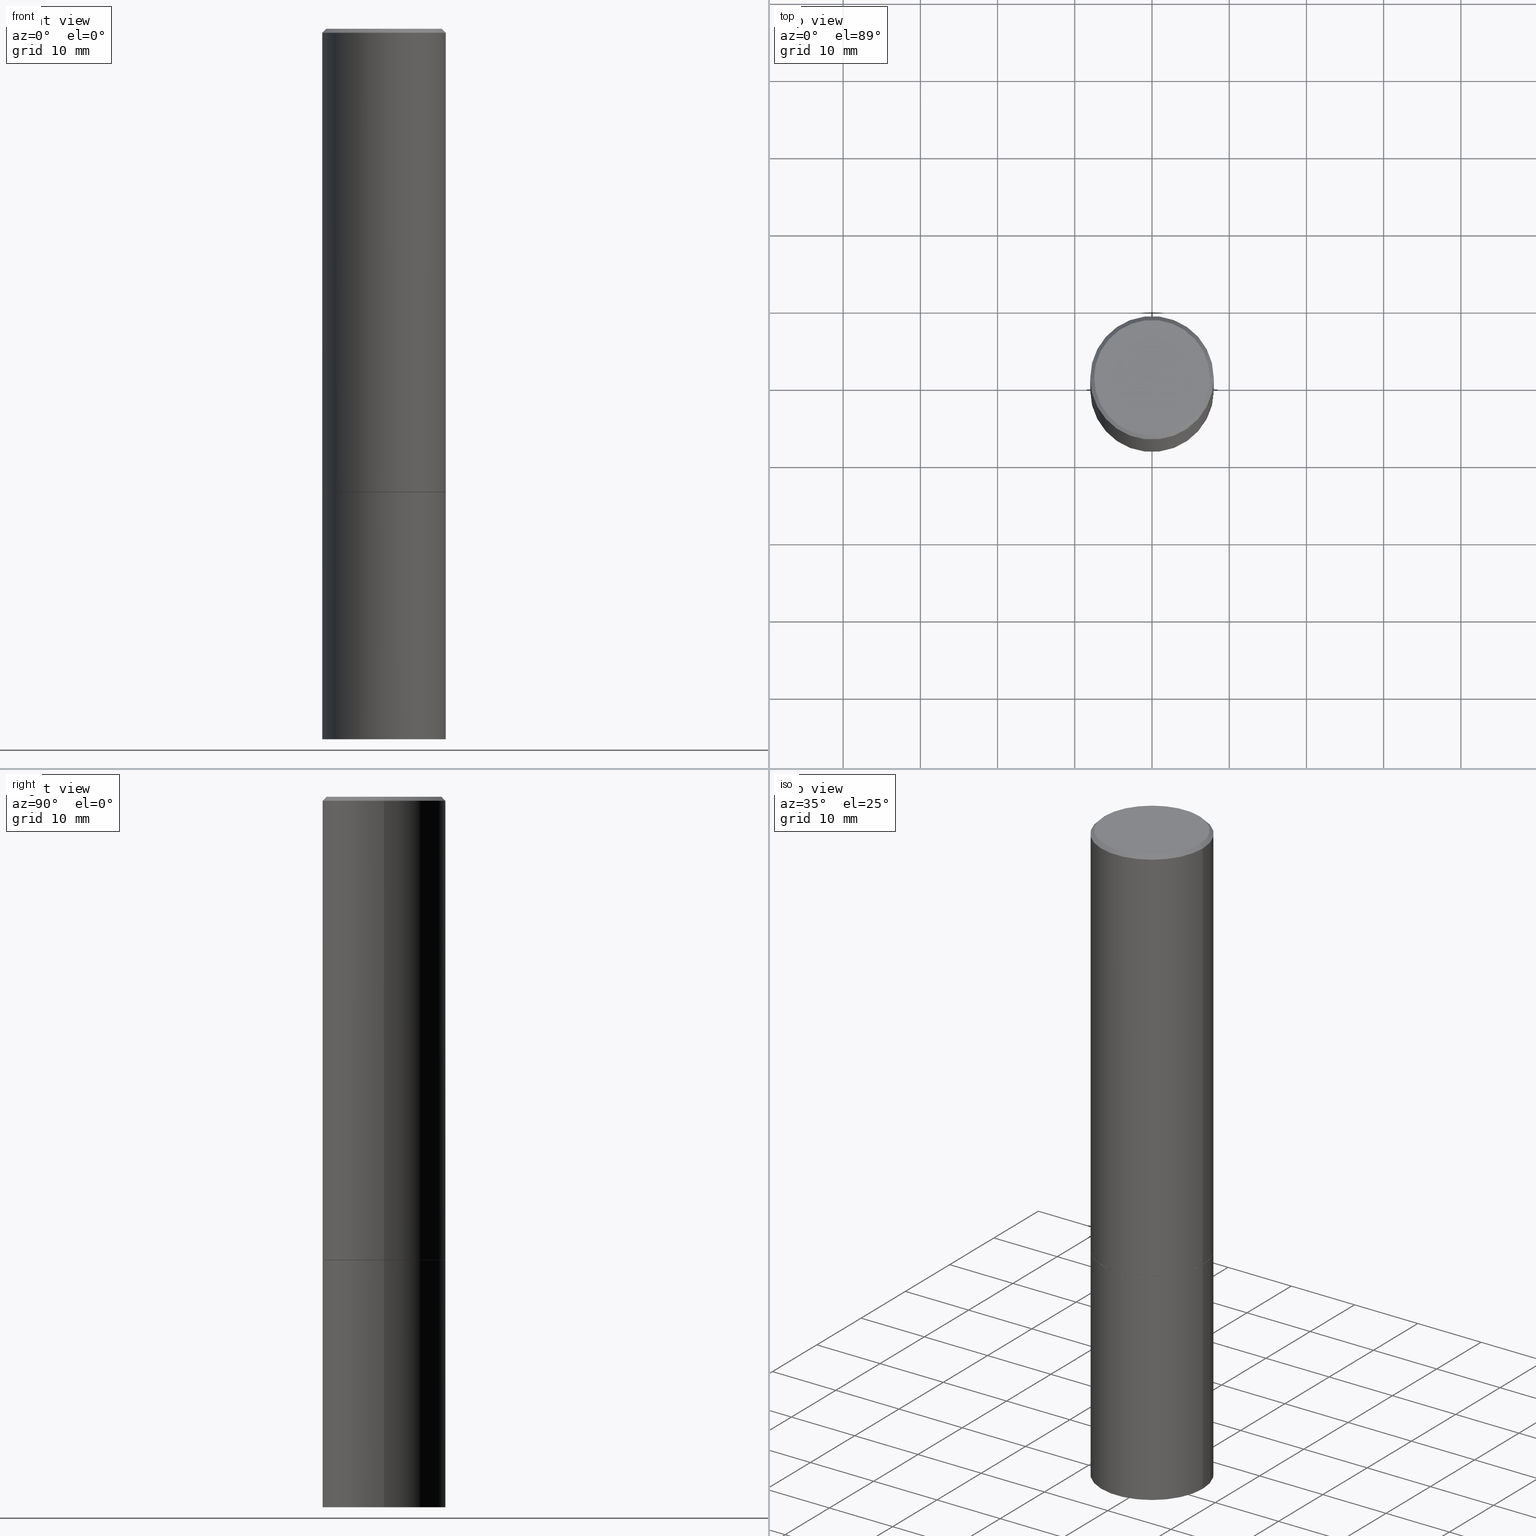
[diagram: canonical four-view strip — front | top / right | iso, engineering-drawing reading convention]
A machine part, canonical four-view strip (front | top / right | iso — engineering-drawing reading convention). The complete STEP part file that produces these views, byte-faithful:
ISO-10303-21;
HEADER;
FILE_DESCRIPTION (( 'STEP AP203' ),
    '1' );
FILE_NAME ('44711.STEP',
    '2024-02-28T07:38:25',
    ( '' ),
    ( '' ),
    'SwSTEP 2.0',
    'SolidWorks 2023',
    '' );
FILE_SCHEMA (( 'CONFIG_CONTROL_DESIGN' ));
ENDSEC;

DATA;
#1 = DIRECTION ( 'NONE',  ( -2.445468806185136597E-29, 3.491481338843145583E-15, 1.000000000000000000 ) ) ;
#2 = AXIS2_PLACEMENT_3D ( 'NONE', #160, #349, #328 ) ;
#3 = LOCAL_TIME ( 2, 38, 25.00000000000000000, #265 ) ;
#4 = EDGE_LOOP ( 'NONE', ( #127, #9, #43, #89 ) ) ;
#5 = DIRECTION ( 'NONE',  ( -2.445468806185136597E-29, 3.491481338843145583E-15, 1.000000000000000000 ) ) ;
#6 = ORIENTED_EDGE ( 'NONE', *, *, #262, .F. ) ;
#7 = ORIENTED_EDGE ( 'NONE', *, *, #363, .T. ) ;
#8 = CLOSED_SHELL ( 'NONE', ( #260, #74, #273, #165, #37, #331, #81, #286 ) ) ;
#9 = ORIENTED_EDGE ( 'NONE', *, *, #147, .T. ) ;
#10 = APPROVAL ( #135, 'UNSPECIFIED' ) ;
#11 = AXIS2_PLACEMENT_3D ( 'NONE', #119, #232, #284 ) ;
#12 = DIRECTION ( 'NONE',  ( 1.000000000000000000, -6.982962677686266711E-15, 0.000000000000000000 ) ) ;
#13 = FACE_OUTER_BOUND ( 'NONE', #58, .T. ) ;
#14 = DIRECTION ( 'NONE',  ( -2.445468806185136597E-29, 3.491481338843145583E-15, 1.000000000000000000 ) ) ;
#15 = CARTESIAN_POINT ( 'NONE',  ( 5.774240945164344150E-29, -8.244085737276433464E-15, -2.361199999999999743 ) ) ;
#16 = CC_DESIGN_PERSON_AND_ORGANIZATION_ASSIGNMENT ( #296, #142, ( #303 ) ) ;
#17 = CARTESIAN_POINT ( 'NONE',  ( 0.3149500000000000077, -2.199284095337289871E-15, 1.535751875536930130E-29 ) ) ;
#18 = PERSON_AND_ORGANIZATION ( #354, #151 ) ;
#19 = CIRCLE ( 'NONE', #346, 0.3149500000000000077 ) ;
#20 = PERSON_AND_ORGANIZATION ( #354, #151 ) ;
#21 = COORDINATED_UNIVERSAL_TIME_OFFSET ( 5, 0, .BEHIND. ) ;
#22 = MANIFOLD_SOLID_BREP ( 'Body-Move/Copy2[2]', #8 ) ;
#23 = FACE_OUTER_BOUND ( 'NONE', #53, .T. ) ;
#24 = FACE_OUTER_BOUND ( 'NONE', #93, .T. ) ;
#25 = APPROVAL_ROLE ( '' ) ;
#26 = DIRECTION ( 'NONE',  ( -2.445468806185136597E-29, 3.491481338843145583E-15, 1.000000000000000000 ) ) ;
#27 = APPROVAL_STATUS ( 'not_yet_approved' ) ;
#28 = CC_DESIGN_APPROVAL ( #129, ( #323 ) ) ;
#29 = DIRECTION ( 'NONE',  ( 1.000000000000000000, -6.982962677686265922E-15, 4.876176775795935232E-29 ) ) ;
#30 = CARTESIAN_POINT ( 'NONE',  ( 5.776686413970529753E-29, -8.247577218615278049E-15, -2.362199999999999633 ) ) ;
#31 = CARTESIAN_POINT ( 'NONE',  ( 5.776686413970529753E-29, -8.247577218615278049E-15, -2.362199999999999633 ) ) ;
#32 = DIRECTION ( 'NONE',  ( 1.000000000000000000, -6.982962677686265922E-15, 4.876176775795935793E-29 ) ) ;
#33 = EDGE_LOOP ( 'NONE', ( #94, #69, #313, #98 ) ) ;
#34 = DIRECTION ( 'NONE',  ( 2.438088387897960049E-29, -3.491481338843145188E-15, -1.000000000000000000 ) ) ;
#35 = AXIS2_PLACEMENT_3D ( 'NONE', #158, #266, #259 ) ;
#36 = LOCAL_TIME ( 2, 38, 25.00000000000000000, #355 ) ;
#37 = ADVANCED_FACE ( 'NONE', ( #13 ), #239, .T. ) ;
#38 = ORIENTED_EDGE ( 'NONE', *, *, #320, .T. ) ;
#39 = VECTOR ( 'NONE', #176, 39.37007874015748143 ) ;
#40 = CALENDAR_DATE ( 2024, 28, 2 ) ;
#41 = EDGE_CURVE ( 'NONE', #117, #287, #351, .T. ) ;
#42 =( NAMED_UNIT ( * ) SI_UNIT ( $, .STERADIAN. ) SOLID_ANGLE_UNIT ( ) );
#43 = ORIENTED_EDGE ( 'NONE', *, *, #212, .F. ) ;
#44 = DIRECTION ( 'NONE',  ( 0.7071067811865232589, -2.468850131082003836E-15, 0.7071067811865715536 ) ) ;
#45 = CC_DESIGN_APPROVAL ( #10, ( #217 ) ) ;
#46 = CYLINDRICAL_SURFACE ( 'NONE', #52, 0.3149500000000000077 ) ;
#47 = DIRECTION ( 'NONE',  ( 1.000000000000000000, -6.982962677686263555E-15, 0.000000000000000000 ) ) ;
#48 = CARTESIAN_POINT ( 'NONE',  ( 0.000000000000000000, 0.000000000000000000, 0.000000000000000000 ) ) ;
#49 = EDGE_CURVE ( 'NONE', #153, #146, #78, .T. ) ;
#50 = SECURITY_CLASSIFICATION_LEVEL ( 'unclassified' ) ;
#51 = AXIS2_PLACEMENT_3D ( 'NONE', #362, #1, #226 ) ;
#52 = AXIS2_PLACEMENT_3D ( 'NONE', #321, #14, #183 ) ;
#53 = EDGE_LOOP ( 'NONE', ( #272, #241, #124, #92 ) ) ;
#54 = PERSON_AND_ORGANIZATION ( #354, #151 ) ;
#55 = EDGE_LOOP ( 'NONE', ( #231, #340 ) ) ;
#56 = AXIS2_PLACEMENT_3D ( 'NONE', #30, #26, #199 ) ;
#57 = CARTESIAN_POINT ( 'NONE',  ( 4.890937612370288047E-31, -6.982962677686311331E-17, -0.02000000000000005940 ) ) ;
#58 = EDGE_LOOP ( 'NONE', ( #283, #201, #342, #233 ) ) ;
#59 = ADVANCED_FACE ( 'NONE', ( #164 ), #300, .F. ) ;
#60 = DIRECTION ( 'NONE',  ( -2.445468806185136597E-29, 3.491481338843145583E-15, 1.000000000000000000 ) ) ;
#61 = CARTESIAN_POINT ( 'NONE',  ( -0.3149500000000000077, 2.237854346276435590E-15, -1.549218606675782676E-29 ) ) ;
#62 = CARTESIAN_POINT ( 'NONE',  ( -0.3149499999999997302, 2.129454468560424601E-15, -0.02000000000000005940 ) ) ;
#63 = EDGE_LOOP ( 'NONE', ( #120, #7, #251, #161 ) ) ;
#64 = DIRECTION ( 'NONE',  ( -1.000000000000000000, 6.982962677686265922E-15, -4.876176775795935793E-29 ) ) ;
#65 = PRODUCT_RELATED_PRODUCT_CATEGORY ( 'detail', '', ( #204 ) ) ;
#66 = EDGE_LOOP ( 'NONE', ( #175, #304 ) ) ;
#67 = DIRECTION ( 'NONE',  ( 1.000000000000000000, -6.982962677686269077E-15, 0.000000000000000000 ) ) ;
#68 = SHAPE_DEFINITION_REPRESENTATION ( #344, #109 ) ;
#69 = ORIENTED_EDGE ( 'NONE', *, *, #41, .T. ) ;
#70 = CARTESIAN_POINT ( 'NONE',  ( 2.199284095337378223E-15, 0.3149499999999873512, -3.622000000000000774 ) ) ;
#71 = DIRECTION ( 'NONE',  ( -1.000000000000000000, 6.982962677686265922E-15, -4.876176775795935793E-29 ) ) ;
#72 = CIRCLE ( 'NONE', #250, 0.3149500000000000077 ) ;
#73 = FACE_OUTER_BOUND ( 'NONE', #63, .T. ) ;
#74 = ADVANCED_FACE ( 'NONE', ( #267 ), #249, .T. ) ;
#75 = CIRCLE ( 'NONE', #51, 0.3139500000000000068 ) ;
#76 = APPROVAL_PERSON_ORGANIZATION ( #20, #129, #85 ) ;
#77 =( CONVERSION_BASED_UNIT ( 'INCH', #236 ) LENGTH_UNIT ( ) NAMED_UNIT ( #285 ) );
#78 = LINE ( 'NONE', #187, #335 ) ;
#79 = PERSON_AND_ORGANIZATION_ROLE ( 'design_owner' ) ;
#80 = COORDINATED_UNIVERSAL_TIME_OFFSET ( 5, 0, .BEHIND. ) ;
#81 = ADVANCED_FACE ( 'NONE', ( #24 ), #223, .F. ) ;
#82 = AXIS2_PLACEMENT_3D ( 'NONE', #193, #111, #67 ) ;
#83 = AXIS2_PLACEMENT_3D ( 'NONE', #130, #348, #101 ) ;
#84 = DATE_AND_TIME ( #330, #36 ) ;
#85 = APPROVAL_ROLE ( '' ) ;
#86 = DIRECTION ( 'NONE',  ( 1.000000000000000000, -6.982962677686267499E-15, 4.876053491004739391E-29 ) ) ;
#87 = CC_DESIGN_DATE_AND_TIME_ASSIGNMENT ( #88, #110, ( #217 ) ) ;
#88 = DATE_AND_TIME ( #268, #105 ) ;
#89 = ORIENTED_EDGE ( 'NONE', *, *, #214, .F. ) ;
#90 = DIRECTION ( 'NONE',  ( -2.445468806185136597E-29, 3.491481338843145583E-15, 1.000000000000000000 ) ) ;
#91 = DIRECTION ( 'NONE',  ( -1.000000000000000000, 6.982962677686266711E-15, 0.000000000000000000 ) ) ;
#92 = ORIENTED_EDGE ( 'NONE', *, *, #172, .F. ) ;
#93 = EDGE_LOOP ( 'NONE', ( #213, #310 ) ) ;
#94 = ORIENTED_EDGE ( 'NONE', *, *, #138, .T. ) ;
#95 = APPROVAL_PERSON_ORGANIZATION ( #197, #194, #25 ) ;
#96 = ORIENTED_EDGE ( 'NONE', *, *, #295, .T. ) ;
#97 = PLANE ( 'NONE',  #318 ) ;
#98 = ORIENTED_EDGE ( 'NONE', *, *, #332, .F. ) ;
#99 = CIRCLE ( 'NONE', #56, 0.3139500000000000068 ) ;
#100 = FACE_OUTER_BOUND ( 'NONE', #179, .T. ) ;
#101 = DIRECTION ( 'NONE',  ( 1.000000000000000000, 0.000000000000000000, 0.000000000000000000 ) ) ;
#102 = MECHANICAL_CONTEXT ( 'NONE', #139, 'mechanical' ) ;
#103 = CARTESIAN_POINT ( 'NONE',  ( -0.3139500000000000068, -6.016828299696443861E-15, -2.362199999999999633 ) ) ;
#104 = AXIS2_PLACEMENT_3D ( 'NONE', #269, #5, #29 ) ;
#105 = LOCAL_TIME ( 2, 38, 25.00000000000000000, #80 ) ;
#106 = EDGE_CURVE ( 'NONE', #171, #153, #185, .T. ) ;
#107 = FACE_OUTER_BOUND ( 'NONE', #33, .T. ) ;
#108 = DIRECTION ( 'NONE',  ( -2.445468806185136597E-29, 3.491481338843145583E-15, 1.000000000000000000 ) ) ;
#109 = ADVANCED_BREP_SHAPE_REPRESENTATION ( '44711', ( #154, #22, #83 ), #297 ) ;
#110 = DATE_TIME_ROLE ( 'creation_date' ) ;
#111 = DIRECTION ( 'NONE',  ( -2.445468806185136597E-29, 3.491481338843145583E-15, 1.000000000000000000 ) ) ;
#112 = ORIENTED_EDGE ( 'NONE', *, *, #278, .T. ) ;
#113 = CLOSED_SHELL ( 'NONE', ( #181, #207, #59, #336 ) ) ;
#114 = DIRECTION ( 'NONE',  ( 1.000000000000000000, -6.982962677686263555E-15, 0.000000000000000000 ) ) ;
#115 = DIRECTION ( 'NONE',  ( 2.445468806185136597E-29, -3.491481338843145583E-15, -1.000000000000000000 ) ) ;
#116 = CC_DESIGN_DATE_AND_TIME_ASSIGNMENT ( #84, #190, ( #323 ) ) ;
#117 = VERTEX_POINT ( 'NONE', #196 ) ;
#118 = DIRECTION ( 'NONE',  ( -1.000000000000000000, 6.982962677686265922E-15, -4.876176775795935793E-29 ) ) ;
#119 = CARTESIAN_POINT ( 'NONE',  ( 4.890937612370288047E-31, -6.982962677686311331E-17, -0.02000000000000005940 ) ) ;
#120 = ORIENTED_EDGE ( 'NONE', *, *, #147, .F. ) ;
#121 = AXIS2_PLACEMENT_3D ( 'NONE', #57, #60, #274 ) ;
#122 = CC_DESIGN_APPROVAL ( #194, ( #303 ) ) ;
#123 = COORDINATED_UNIVERSAL_TIME_OFFSET ( 5, 0, .BEHIND. ) ;
#124 = ORIENTED_EDGE ( 'NONE', *, *, #289, .T. ) ;
#125 = FACE_OUTER_BOUND ( 'NONE', #55, .T. ) ;
#126 = EDGE_CURVE ( 'NONE', #153, #171, #234, .T. ) ;
#127 = ORIENTED_EDGE ( 'NONE', *, *, #290, .T. ) ;
#128 =( LENGTH_UNIT ( ) NAMED_UNIT ( * ) SI_UNIT ( $, .METRE. ) );
#129 = APPROVAL ( #27, 'UNSPECIFIED' ) ;
#130 = CARTESIAN_POINT ( 'NONE',  ( 0.000000000000000000, 0.000000000000000000, 0.000000000000000000 ) ) ;
#131 = CARTESIAN_POINT ( 'NONE',  ( 0.3139500000000000068, -1.043987835127488191E-14, -2.362199999999999633 ) ) ;
#132 = EDGE_CURVE ( 'NONE', #306, #247, #205, .T. ) ;
#133 = DIRECTION ( 'NONE',  ( -2.445468806185136877E-29, 3.491481338843145188E-15, 1.000000000000000000 ) ) ;
#134 = AXIS2_PLACEMENT_3D ( 'NONE', #195, #224, #137 ) ;
#135 = APPROVAL_STATUS ( 'not_yet_approved' ) ;
#136 = PERSON_AND_ORGANIZATION ( #354, #151 ) ;
#137 = DIRECTION ( 'NONE',  ( -1.000000000000000000, 6.982962677686266711E-15, 0.000000000000000000 ) ) ;
#138 = EDGE_CURVE ( 'NONE', #219, #117, #75, .T. ) ;
#139 = APPLICATION_CONTEXT ( 'configuration controlled 3d designs of mechanical parts and assemblies' ) ;
#140 = PERSON_AND_ORGANIZATION_ROLE ( 'design_supplier' ) ;
#141 = DIRECTION ( 'NONE',  ( -2.445468806185136597E-29, 3.491481338843145583E-15, 1.000000000000000000 ) ) ;
#142 = PERSON_AND_ORGANIZATION_ROLE ( 'creator' ) ;
#143 = EDGE_CURVE ( 'NONE', #210, #287, #72, .T. ) ;
#144 = CC_DESIGN_SECURITY_CLASSIFICATION ( #323, ( #303 ) ) ;
#145 = CARTESIAN_POINT ( 'NONE',  ( -2.087702828670439639E-46, 2.980686340760894400E-32, 8.537024980200822558E-18 ) ) ;
#146 = VERTEX_POINT ( 'NONE', #200 ) ;
#147 = EDGE_CURVE ( 'NONE', #167, #306, #305, .T. ) ;
#148 = CC_DESIGN_PERSON_AND_ORGANIZATION_ASSIGNMENT ( #326, #79, ( #204 ) ) ;
#149 = ORIENTED_EDGE ( 'NONE', *, *, #143, .T. ) ;
#150 = AXIS2_PLACEMENT_3D ( 'NONE', #15, #353, #47 ) ;
#151 = ORGANIZATION ( 'UNSPECIFIED', 'UNSPECIFIED', '' ) ;
#152 = APPROVAL_DATE_TIME ( #209, #129 ) ;
#153 = VERTEX_POINT ( 'NONE', #252 ) ;
#154 = MANIFOLD_SOLID_BREP ( 'Body-Move/Copy2[1]', #113 ) ;
#155 = DIRECTION ( 'NONE',  ( 1.000000000000000000, -6.982962677686263555E-15, 0.000000000000000000 ) ) ;
#156 = CARTESIAN_POINT ( 'NONE',  ( -0.3149499999999997302, 2.129454468560424601E-15, -0.02000000000000005940 ) ) ;
#157 = AXIS2_PLACEMENT_3D ( 'NONE', #339, #115, #91 ) ;
#158 = CARTESIAN_POINT ( 'NONE',  ( 5.776686413970529753E-29, -8.247577218615278049E-15, -2.362199999999999633 ) ) ;
#159 = DIRECTION ( 'NONE',  ( 1.000000000000000000, -6.982962677686265922E-15, 4.876176775795935232E-29 ) ) ;
#160 = CARTESIAN_POINT ( 'NONE',  ( 8.857488016002564476E-29, -1.264614540928987199E-14, -3.621999999999999886 ) ) ;
#161 = ORIENTED_EDGE ( 'NONE', *, *, #132, .F. ) ;
#162 = APPROVAL_ROLE ( '' ) ;
#163 = DATE_AND_TIME ( #298, #3 ) ;
#164 = FACE_OUTER_BOUND ( 'NONE', #333, .T. ) ;
#165 = ADVANCED_FACE ( 'NONE', ( #100 ), #281, .T. ) ;
#166 = CARTESIAN_POINT ( 'NONE',  ( 2.199284095337347063E-15, 0.3149499999999917366, -2.362200000000000966 ) ) ;
#167 = VERTEX_POINT ( 'NONE', #244 ) ;
#168 = CIRCLE ( 'NONE', #11, 0.3149499999999997302 ) ;
#169 = CARTESIAN_POINT ( 'NONE',  ( -0.2949499999999997124, 2.094539655171993740E-15, 8.537024980186296424E-18 ) ) ;
#170 = APPROVAL_STATUS ( 'not_yet_approved' ) ;
#171 = VERTEX_POINT ( 'NONE', #169 ) ;
#172 = EDGE_CURVE ( 'NONE', #171, #208, #364, .T. ) ;
#173 = DIRECTION ( 'NONE',  ( 1.000000000000000000, -6.982962677686267499E-15, 4.876053491004739391E-29 ) ) ;
#174 = CYLINDRICAL_SURFACE ( 'NONE', #291, 0.3149500000000000077 ) ;
#175 = ORIENTED_EDGE ( 'NONE', *, *, #290, .F. ) ;
#176 = DIRECTION ( 'NONE',  ( -2.445468806185136877E-29, 3.491481338843145188E-15, 1.000000000000000000 ) ) ;
#177 = CONICAL_SURFACE ( 'NONE', #134, 0.3149499999999997302, 0.7853981633974472798 ) ;
#178 = CARTESIAN_POINT ( 'NONE',  ( -0.3149500000000000077, -1.919103335750211213E-15, -2.361199999999999743 ) ) ;
#179 = EDGE_LOOP ( 'NONE', ( #227, #258, #280, #112 ) ) ;
#180 = ORIENTED_EDGE ( 'NONE', *, *, #212, .T. ) ;
#181 = ADVANCED_FACE ( 'NONE', ( #359 ), #174, .T. ) ;
#182 = VECTOR ( 'NONE', #361, 39.37007874015748143 ) ;
#183 = DIRECTION ( 'NONE',  ( 1.000000000000000000, -6.982962677686266711E-15, 4.876176775795936353E-29 ) ) ;
#184 = CARTESIAN_POINT ( 'NONE',  ( 0.3149500000000000077, -1.044686131395256792E-14, -2.362199999999999633 ) ) ;
#185 = CIRCLE ( 'NONE', #261, 0.2949499999999997124 ) ;
#186 = DIRECTION ( 'NONE',  ( -2.445468806185136877E-29, 3.491481338843145188E-15, 1.000000000000000000 ) ) ;
#187 = CARTESIAN_POINT ( 'NONE',  ( 0.3149499999999997302, -2.230543471175005478E-15, -0.02000000000000005940 ) ) ;
#188 = CC_DESIGN_PERSON_AND_ORGANIZATION_ASSIGNMENT ( #136, #276, ( #217 ) ) ;
#189 = APPLICATION_PROTOCOL_DEFINITION ( 'international standard', 'config_control_design', 1994, #256 ) ;
#190 = DATE_TIME_ROLE ( 'classification_date' ) ;
#191 = VECTOR ( 'NONE', #44, 39.37007874015748854 ) ;
#192 = DATE_AND_TIME ( #301, #314 ) ;
#193 = CARTESIAN_POINT ( 'NONE',  ( 5.776686413970529753E-29, -8.247577218615278049E-15, -2.362199999999999633 ) ) ;
#194 = APPROVAL ( #170, 'UNSPECIFIED' ) ;
#195 = CARTESIAN_POINT ( 'NONE',  ( 4.890937612370288047E-31, -6.982962677686311331E-17, -0.02000000000000005940 ) ) ;
#196 = CARTESIAN_POINT ( 'NONE',  ( -0.3139500000000000068, -6.011529845348221459E-15, -2.362199999999999633 ) ) ;
#197 = PERSON_AND_ORGANIZATION ( #354, #151 ) ;
#198 = AXIS2_PLACEMENT_3D ( 'NONE', #166, #34, #118 ) ;
#199 = DIRECTION ( 'NONE',  ( 1.000000000000000000, -6.982962677686269077E-15, 0.000000000000000000 ) ) ;
#200 = CARTESIAN_POINT ( 'NONE',  ( 0.3149499999999997302, -2.230543471175005478E-15, -0.02000000000000005940 ) ) ;
#201 = ORIENTED_EDGE ( 'NONE', *, *, #253, .T. ) ;
#202 = DIRECTION ( 'NONE',  ( 1.000000000000000000, -6.982962677686266711E-15, 4.876176775795936353E-29 ) ) ;
#203 = ORIENTED_EDGE ( 'NONE', *, *, #132, .T. ) ;
#204 = PRODUCT ( '44711', '44711', '', ( #102 ) ) ;
#205 = CIRCLE ( 'NONE', #312, 0.3149500000000000077 ) ;
#206 = ORIENTED_EDGE ( 'NONE', *, *, #289, .F. ) ;
#207 = ADVANCED_FACE ( 'NONE', ( #309 ), #97, .T. ) ;
#208 = VERTEX_POINT ( 'NONE', #156 ) ;
#209 = DATE_AND_TIME ( #40, #282 ) ;
#210 = VERTEX_POINT ( 'NONE', #257 ) ;
#211 = DIRECTION ( 'NONE',  ( 2.438088387897960049E-29, -3.491481338843145188E-15, -1.000000000000000000 ) ) ;
#212 = EDGE_CURVE ( 'NONE', #247, #306, #19, .T. ) ;
#213 = ORIENTED_EDGE ( 'NONE', *, *, #138, .F. ) ;
#214 = EDGE_CURVE ( 'NONE', #343, #247, #263, .T. ) ;
#215 = LINE ( 'NONE', #324, #221 ) ;
#216 = CIRCLE ( 'NONE', #2, 0.3149500000000000077 ) ;
#217 = PRODUCT_DEFINITION ( 'UNKNOWN', '', #303, #365 ) ;
#218 = APPROVAL_PERSON_ORGANIZATION ( #18, #10, #162 ) ;
#219 = VERTEX_POINT ( 'NONE', #131 ) ;
#220 = DIRECTION ( 'NONE',  ( -2.445468806185136877E-29, 3.491481338843145188E-15, 1.000000000000000000 ) ) ;
#221 = VECTOR ( 'NONE', #186, 39.37007874015748143 ) ;
#222 = APPROVAL_DATE_TIME ( #192, #194 ) ;
#223 = PLANE ( 'NONE',  #243 ) ;
#224 = DIRECTION ( 'NONE',  ( 2.445468806185136597E-29, -3.491481338843145583E-15, -1.000000000000000000 ) ) ;
#225 = DIRECTION ( 'NONE',  ( -2.438088387897960049E-29, 3.491481338843145188E-15, 1.000000000000000000 ) ) ;
#226 = DIRECTION ( 'NONE',  ( 1.000000000000000000, -6.982962677686269077E-15, 0.000000000000000000 ) ) ;
#227 = ORIENTED_EDGE ( 'NONE', *, *, #49, .F. ) ;
#228 = AXIS2_PLACEMENT_3D ( 'NONE', #48, #108, #159 ) ;
#229 = LINE ( 'NONE', #356, #302 ) ;
#230 = CARTESIAN_POINT ( 'NONE',  ( 0.000000000000000000, 0.000000000000000000, 0.000000000000000000 ) ) ;
#231 = ORIENTED_EDGE ( 'NONE', *, *, #106, .T. ) ;
#232 = DIRECTION ( 'NONE',  ( -2.445468806185136597E-29, 3.491481338843145583E-15, 1.000000000000000000 ) ) ;
#233 = ORIENTED_EDGE ( 'NONE', *, *, #278, .F. ) ;
#234 = CIRCLE ( 'NONE', #240, 0.2949499999999997124 ) ;
#235 = PLANE ( 'NONE',  #322 ) ;
#236 = LENGTH_MEASURE_WITH_UNIT ( LENGTH_MEASURE( 0.02539999999999999897 ), #128 );
#237 = CONICAL_SURFACE ( 'NONE', #82, 0.3139500000000000068, 0.7853981633974141952 ) ;
#238 = APPLICATION_PROTOCOL_DEFINITION ( 'international standard', 'config_control_design', 1994, #139 ) ;
#239 = CYLINDRICAL_SURFACE ( 'NONE', #228, 0.3149499999999998967 ) ;
#240 = AXIS2_PLACEMENT_3D ( 'NONE', #308, #275, #173 ) ;
#241 = ORIENTED_EDGE ( 'NONE', *, *, #49, .T. ) ;
#242 = PERSON_AND_ORGANIZATION ( #354, #151 ) ;
#243 = AXIS2_PLACEMENT_3D ( 'NONE', #246, #225, #32 ) ;
#244 = CARTESIAN_POINT ( 'NONE',  ( -0.3149500000000000077, -8.209006967676139823E-15, -3.621999999999999886 ) ) ;
#245 = PERSON_AND_ORGANIZATION_ROLE ( 'classification_officer' ) ;
#246 = CARTESIAN_POINT ( 'NONE',  ( 5.776686413970529753E-29, -8.247577218615278049E-15, -2.362199999999999633 ) ) ;
#247 = VERTEX_POINT ( 'NONE', #184 ) ;
#248 = DIRECTION ( 'NONE',  ( 1.000000000000000000, -6.982962677686266711E-15, 0.000000000000000000 ) ) ;
#249 = CYLINDRICAL_SURFACE ( 'NONE', #104, 0.3149499999999998967 ) ;
#250 = AXIS2_PLACEMENT_3D ( 'NONE', #334, #90, #114 ) ;
#251 = ORIENTED_EDGE ( 'NONE', *, *, #214, .T. ) ;
#252 = CARTESIAN_POINT ( 'NONE',  ( 0.2949499999999997124, -2.127023677808858103E-15, 8.537024980215462707E-18 ) ) ;
#253 = EDGE_CURVE ( 'NONE', #287, #210, #270, .T. ) ;
#254 = VECTOR ( 'NONE', #325, 39.37007874015748854 ) ;
#255 = CARTESIAN_POINT ( 'NONE',  ( 0.3149500000000000077, -1.484542950462716186E-14, -3.621999999999999886 ) ) ;
#256 = APPLICATION_CONTEXT ( 'configuration controlled 3d designs of mechanical parts and assemblies' ) ;
#257 = CARTESIAN_POINT ( 'NONE',  ( 0.3149500000000000077, -1.044336983261372333E-14, -2.361199999999999743 ) ) ;
#258 = ORIENTED_EDGE ( 'NONE', *, *, #106, .F. ) ;
#259 = DIRECTION ( 'NONE',  ( 1.000000000000000000, -6.982962677686269077E-15, 0.000000000000000000 ) ) ;
#260 = ADVANCED_FACE ( 'NONE', ( #107 ), #341, .T. ) ;
#261 = AXIS2_PLACEMENT_3D ( 'NONE', #145, #279, #86 ) ;
#262 = EDGE_CURVE ( 'NONE', #210, #146, #215, .T. ) ;
#263 = LINE ( 'NONE', #17, #357 ) ;
#264 = CIRCLE ( 'NONE', #121, 0.3149499999999997302 ) ;
#265 = COORDINATED_UNIVERSAL_TIME_OFFSET ( 5, 0, .BEHIND. ) ;
#266 = DIRECTION ( 'NONE',  ( -2.445468806185136597E-29, 3.491481338843145583E-15, 1.000000000000000000 ) ) ;
#267 = FACE_OUTER_BOUND ( 'NONE', #345, .T. ) ;
#268 = CALENDAR_DATE ( 2024, 28, 2 ) ;
#269 = CARTESIAN_POINT ( 'NONE',  ( 0.000000000000000000, 0.000000000000000000, 0.000000000000000000 ) ) ;
#270 = CIRCLE ( 'NONE', #150, 0.3149500000000000077 ) ;
#271 = AXIS2_PLACEMENT_3D ( 'NONE', #352, #347, #155 ) ;
#272 = ORIENTED_EDGE ( 'NONE', *, *, #126, .F. ) ;
#273 = ADVANCED_FACE ( 'NONE', ( #23 ), #177, .T. ) ;
#274 = DIRECTION ( 'NONE',  ( 1.000000000000000000, -6.982962677686266711E-15, 0.000000000000000000 ) ) ;
#275 = DIRECTION ( 'NONE',  ( -2.445468806185136597E-29, 3.491481338843145583E-15, 1.000000000000000000 ) ) ;
#276 = PERSON_AND_ORGANIZATION_ROLE ( 'creator' ) ;
#277 = CARTESIAN_POINT ( 'NONE',  ( -0.3149500000000000077, -8.209006967676139823E-15, -2.362199999999999633 ) ) ;
#278 = EDGE_CURVE ( 'NONE', #208, #146, #264, .T. ) ;
#279 = DIRECTION ( 'NONE',  ( -2.445468806185136597E-29, 3.491481338843145583E-15, 1.000000000000000000 ) ) ;
#280 = ORIENTED_EDGE ( 'NONE', *, *, #172, .T. ) ;
#281 = CONICAL_SURFACE ( 'NONE', #157, 0.3149499999999997302, 0.7853981633974472798 ) ;
#282 = LOCAL_TIME ( 2, 38, 25.00000000000000000, #123 ) ;
#283 = ORIENTED_EDGE ( 'NONE', *, *, #320, .F. ) ;
#284 = DIRECTION ( 'NONE',  ( 1.000000000000000000, -6.982962677686266711E-15, 0.000000000000000000 ) ) ;
#285 = DIMENSIONAL_EXPONENTS ( 1.000000000000000000, 0.000000000000000000, 0.000000000000000000, 0.000000000000000000, 0.000000000000000000, 0.000000000000000000, 0.000000000000000000 ) ;
#286 = ADVANCED_FACE ( 'NONE', ( #125 ), #235, .F. ) ;
#287 = VERTEX_POINT ( 'NONE', #178 ) ;
#288 =( NAMED_UNIT ( * ) PLANE_ANGLE_UNIT ( ) SI_UNIT ( $, .RADIAN. ) );
#289 = EDGE_CURVE ( 'NONE', #146, #208, #168, .T. ) ;
#290 = EDGE_CURVE ( 'NONE', #343, #167, #216, .T. ) ;
#291 = AXIS2_PLACEMENT_3D ( 'NONE', #230, #337, #202 ) ;
#292 = DIRECTION ( 'NONE',  ( -2.445468806185136597E-29, 3.491481338843145583E-15, 1.000000000000000000 ) ) ;
#293 = DIRECTION ( 'NONE',  ( 0.7071067811865467956, -7.319954787623254468E-15, -0.7071067811865482389 ) ) ;
#294 = CARTESIAN_POINT ( 'NONE',  ( 0.3139500000000000068, -1.043987835127488191E-14, -2.362199999999999633 ) ) ;
#295 = EDGE_CURVE ( 'NONE', #117, #219, #99, .T. ) ;
#296 = PERSON_AND_ORGANIZATION ( #354, #151 ) ;
#297 =( GEOMETRIC_REPRESENTATION_CONTEXT ( 3 ) GLOBAL_UNCERTAINTY_ASSIGNED_CONTEXT ( ( #327 ) ) GLOBAL_UNIT_ASSIGNED_CONTEXT ( ( #77, #288, #42 ) ) REPRESENTATION_CONTEXT ( 'NONE', 'WORKASPACE' ) );
#298 = CALENDAR_DATE ( 2024, 28, 2 ) ;
#299 = ORIENTED_EDGE ( 'NONE', *, *, #41, .F. ) ;
#300 = PLANE ( 'NONE',  #198 ) ;
#301 = CALENDAR_DATE ( 2024, 28, 2 ) ;
#302 = VECTOR ( 'NONE', #220, 39.37007874015748143 ) ;
#303 = PRODUCT_DEFINITION_FORMATION_WITH_SPECIFIED_SOURCE ( 'ANY', '', #204, .NOT_KNOWN. ) ;
#304 = ORIENTED_EDGE ( 'NONE', *, *, #363, .F. ) ;
#305 = LINE ( 'NONE', #61, #39 ) ;
#306 = VERTEX_POINT ( 'NONE', #277 ) ;
#307 = CC_DESIGN_PERSON_AND_ORGANIZATION_ASSIGNMENT ( #54, #140, ( #303 ) ) ;
#308 = CARTESIAN_POINT ( 'NONE',  ( -2.087702828670439639E-46, 2.980686340760894400E-32, 8.537024980200822558E-18 ) ) ;
#309 = FACE_OUTER_BOUND ( 'NONE', #66, .T. ) ;
#310 = ORIENTED_EDGE ( 'NONE', *, *, #295, .F. ) ;
#311 = CARTESIAN_POINT ( 'NONE',  ( 2.059624841783562091E-15, 0.2949499999999997124, -1.025543908401684366E-15 ) ) ;
#312 = AXIS2_PLACEMENT_3D ( 'NONE', #31, #141, #248 ) ;
#313 = ORIENTED_EDGE ( 'NONE', *, *, #143, .F. ) ;
#314 = LOCAL_TIME ( 2, 38, 25.00000000000000000, #21 ) ;
#315 = EDGE_LOOP ( 'NONE', ( #299, #96, #338, #366 ) ) ;
#316 = DIRECTION ( 'NONE',  ( 2.438088387897960049E-29, -3.491481338843145188E-15, -1.000000000000000000 ) ) ;
#317 = CC_DESIGN_PERSON_AND_ORGANIZATION_ASSIGNMENT ( #242, #245, ( #323 ) ) ;
#318 = AXIS2_PLACEMENT_3D ( 'NONE', #70, #211, #71 ) ;
#319 = LINE ( 'NONE', #294, #191 ) ;
#320 = EDGE_CURVE ( 'NONE', #287, #208, #229, .T. ) ;
#321 = CARTESIAN_POINT ( 'NONE',  ( 0.000000000000000000, 0.000000000000000000, 0.000000000000000000 ) ) ;
#322 = AXIS2_PLACEMENT_3D ( 'NONE', #311, #316, #64 ) ;
#323 = SECURITY_CLASSIFICATION ( '', '', #50 ) ;
#324 = CARTESIAN_POINT ( 'NONE',  ( 0.3149499999999998967, -2.199284095337288688E-15, 1.535751875536929289E-29 ) ) ;
#325 = DIRECTION ( 'NONE',  ( -0.7071067811865232589, 7.493145998870265808E-15, 0.7071067811865715536 ) ) ;
#326 = PERSON_AND_ORGANIZATION ( #354, #151 ) ;
#327 = UNCERTAINTY_MEASURE_WITH_UNIT (LENGTH_MEASURE( 1.000000000000000082E-05 ), #77, 'distance_accuracy_value', 'NONE');
#328 = DIRECTION ( 'NONE',  ( 1.000000000000000000, -6.982962677686263555E-15, 0.000000000000000000 ) ) ;
#329 = APPROVAL_DATE_TIME ( #163, #10 ) ;
#330 = CALENDAR_DATE ( 2024, 28, 2 ) ;
#331 = ADVANCED_FACE ( 'NONE', ( #360 ), #237, .T. ) ;
#332 = EDGE_CURVE ( 'NONE', #219, #210, #319, .T. ) ;
#333 = EDGE_LOOP ( 'NONE', ( #180, #203 ) ) ;
#334 = CARTESIAN_POINT ( 'NONE',  ( 5.774240945164344150E-29, -8.244085737276433464E-15, -2.361199999999999743 ) ) ;
#335 = VECTOR ( 'NONE', #293, 39.37007874015748143 ) ;
#336 = ADVANCED_FACE ( 'NONE', ( #73 ), #46, .T. ) ;
#337 = DIRECTION ( 'NONE',  ( -2.445468806185136597E-29, 3.491481338843145583E-15, 1.000000000000000000 ) ) ;
#338 = ORIENTED_EDGE ( 'NONE', *, *, #332, .T. ) ;
#339 = CARTESIAN_POINT ( 'NONE',  ( 4.890937612370288047E-31, -6.982962677686311331E-17, -0.02000000000000005940 ) ) ;
#340 = ORIENTED_EDGE ( 'NONE', *, *, #126, .T. ) ;
#341 = CONICAL_SURFACE ( 'NONE', #35, 0.3139500000000000068, 0.7853981633974141952 ) ;
#342 = ORIENTED_EDGE ( 'NONE', *, *, #262, .T. ) ;
#343 = VERTEX_POINT ( 'NONE', #255 ) ;
#344 = PRODUCT_DEFINITION_SHAPE ( 'NONE', 'NONE',  #217 ) ;
#345 = EDGE_LOOP ( 'NONE', ( #149, #38, #206, #6 ) ) ;
#346 = AXIS2_PLACEMENT_3D ( 'NONE', #350, #292, #12 ) ;
#347 = DIRECTION ( 'NONE',  ( -2.445468806185136597E-29, 3.491481338843145583E-15, 1.000000000000000000 ) ) ;
#348 = DIRECTION ( 'NONE',  ( 0.000000000000000000, 0.000000000000000000, 1.000000000000000000 ) ) ;
#349 = DIRECTION ( 'NONE',  ( -2.445468806185136597E-29, 3.491481338843145583E-15, 1.000000000000000000 ) ) ;
#350 = CARTESIAN_POINT ( 'NONE',  ( 5.776686413970529753E-29, -8.247577218615278049E-15, -2.362199999999999633 ) ) ;
#351 = LINE ( 'NONE', #103, #254 ) ;
#352 = CARTESIAN_POINT ( 'NONE',  ( 8.857488016002564476E-29, -1.264614540928987199E-14, -3.621999999999999886 ) ) ;
#353 = DIRECTION ( 'NONE',  ( -2.445468806185136597E-29, 3.491481338843145583E-15, 1.000000000000000000 ) ) ;
#354 = PERSON ( 'UNSPECIFIED', 'UNSPECIFIED', 'UNSPECIFIED', ('UNSPECIFIED'), ('UNSPECIFIED'), ('UNSPECIFIED') ) ;
#355 = COORDINATED_UNIVERSAL_TIME_OFFSET ( 5, 0, .BEHIND. ) ;
#356 = CARTESIAN_POINT ( 'NONE',  ( -0.3149499999999998967, 2.237854346276434801E-15, -1.549218606675782116E-29 ) ) ;
#357 = VECTOR ( 'NONE', #133, 39.37007874015748143 ) ;
#358 = CIRCLE ( 'NONE', #271, 0.3149500000000000077 ) ;
#359 = FACE_OUTER_BOUND ( 'NONE', #4, .T. ) ;
#360 = FACE_OUTER_BOUND ( 'NONE', #315, .T. ) ;
#361 = DIRECTION ( 'NONE',  ( -0.7071067811865467956, 2.468850131082249172E-15, -0.7071067811865482389 ) ) ;
#362 = CARTESIAN_POINT ( 'NONE',  ( 5.776686413970529753E-29, -8.247577218615278049E-15, -2.362199999999999633 ) ) ;
#363 = EDGE_CURVE ( 'NONE', #167, #343, #358, .T. ) ;
#364 = LINE ( 'NONE', #62, #182 ) ;
#365 = DESIGN_CONTEXT ( 'detailed design', #256, 'design' ) ;
#366 = ORIENTED_EDGE ( 'NONE', *, *, #253, .F. ) ;
ENDSEC;
END-ISO-10303-21;
